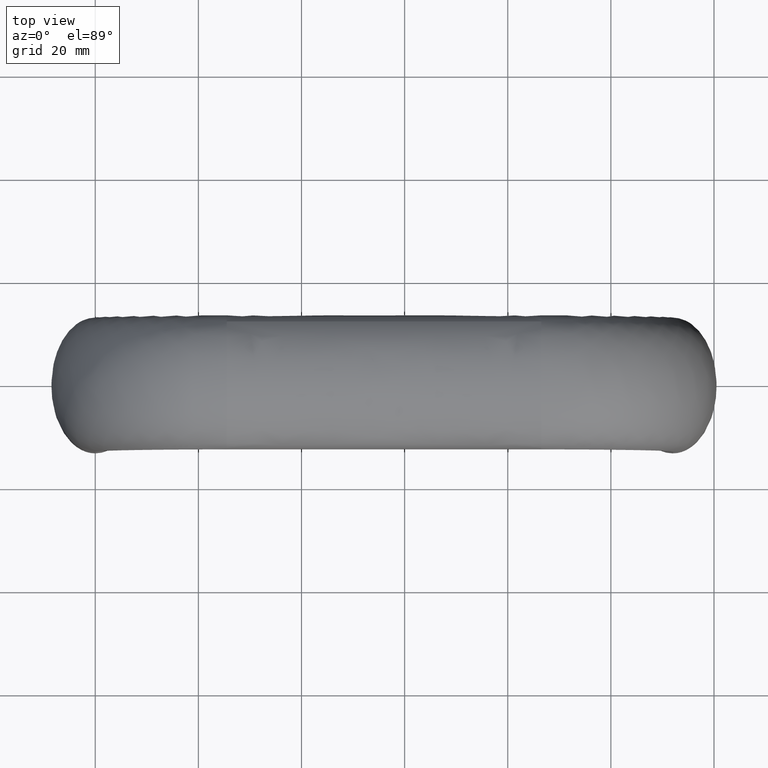
[diagram: clean part render]
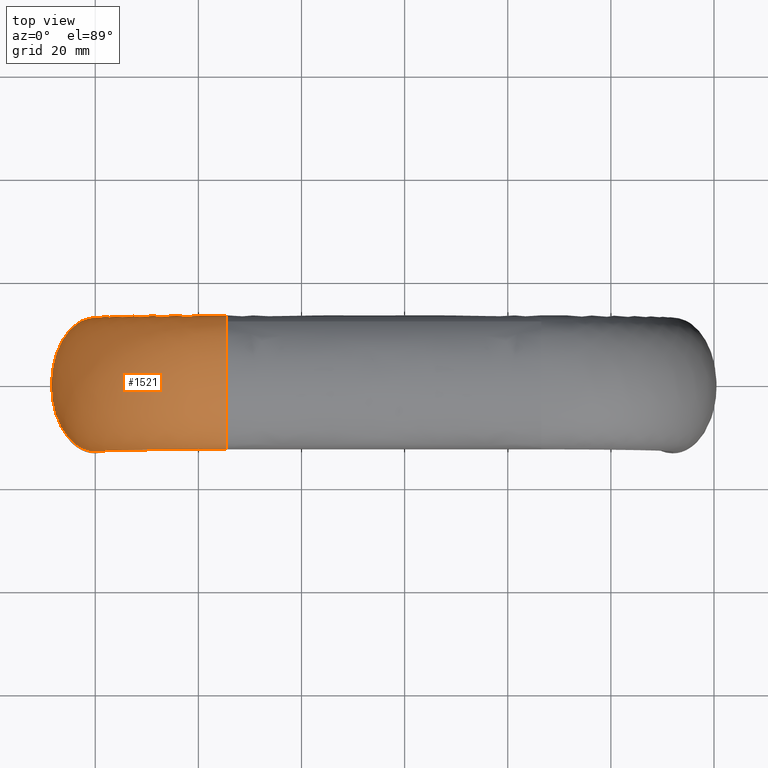
[diagram: same view with one face highlighted and labeled with its STEP entity id]
A machine part, top view. The second image highlights one B-rep face of the part: STEP entity #1521.
In plain terms, the highlighted face is a freeform B-spline surface patch.
Its self-contained STEP definition (entity closure, byte-faithful):
#1114=CARTESIAN_POINT('',(25.500000000000000,11.762630261970060,48.119082295161462));
#1115=VERTEX_POINT('',#1114);
#1123=CARTESIAN_POINT('',(25.500000000000000,-13.0,44.500008000000001));
#1124=VERTEX_POINT('',#1123);
#1125=CARTESIAN_POINT('',(25.500000000000000,11.762630261970060,48.119082295161462));
#1126=CARTESIAN_POINT('',(25.500000000000000,11.124518000535289,49.004813718325039));
#1127=CARTESIAN_POINT('',(25.500000000000000,10.251275255545981,49.818066382314342));
#1128=CARTESIAN_POINT('',(25.500000000000000,6.785826563922671,52.083936680683387));
#1129=CARTESIAN_POINT('',(25.500000000000000,3.403392041388941,53.000008000000001));
#1130=CARTESIAN_POINT('',(25.500000000000000,-3.403392041388945,53.000008000000001));
#1131=CARTESIAN_POINT('',(25.500000000000000,-6.785826563922671,52.083936680683387));
#1132=CARTESIAN_POINT('',(25.500000000000000,-10.395668951176340,49.723655119786798));
#1133=CARTESIAN_POINT('',(25.500000000000000,-11.359223048605340,48.780769333152712));
#1134=CARTESIAN_POINT('',(25.500000000000000,-12.661644796688099,46.724865017053901));
#1135=CARTESIAN_POINT('',(25.500000000000000,-13.0,45.612655398146401));
#1136=CARTESIAN_POINT('',(25.500000000000000,-13.0,44.500008000000001));
#1137=B_SPLINE_CURVE_WITH_KNOTS('',3,(#1125,#1126,#1127,#1128,#1129,#1130,#1131,#1132,#1133,#1134,#1135,#1136),.UNSPECIFIED.,.F.,.U.,(4,2,2,2,2,4),(0.570000000007283,0.625000000000000,0.750000000000000,0.875000000000000,0.937500000000000,1.0),.UNSPECIFIED.);
#1138=EDGE_CURVE('',#1115,#1124,#1137,.T.);
#1227=CARTESIAN_POINT('',(25.500000000000000,11.762637318019101,40.880943499016666));
#1228=VERTEX_POINT('',#1227);
#1244=CARTESIAN_POINT('',(25.500000000000000,13.0,44.500008000000001));
#1245=VERTEX_POINT('',#1244);
#1246=CARTESIAN_POINT('',(25.500000000000000,11.762637318019101,40.880943499016666));
#1247=CARTESIAN_POINT('',(25.500000000000000,11.849650038056430,41.001721864901022));
#1248=CARTESIAN_POINT('',(25.500000000000000,11.932290729989900,41.123847900134180));
#1249=CARTESIAN_POINT('',(25.500000000000000,12.661644796688099,42.275150982946151));
#1250=CARTESIAN_POINT('',(25.500000000000000,13.0,43.387360601853601));
#1251=CARTESIAN_POINT('',(25.500000000000000,13.0,44.500008000000001));
#1252=B_SPLINE_CURVE_WITH_KNOTS('',3,(#1246,#1247,#1248,#1249,#1250,#1251),.UNSPECIFIED.,.F.,.U.,(4,2,4),(0.430000202721214,0.437500000000000,0.500000000000000),.UNSPECIFIED.);
#1253=EDGE_CURVE('',#1228,#1245,#1252,.T.);
#1255=CARTESIAN_POINT('',(25.500000000000000,13.0,44.500008000000001));
#1256=CARTESIAN_POINT('',(25.500000000000000,13.0,45.612655398146401));
#1257=CARTESIAN_POINT('',(25.500000000000000,12.661644796688099,46.724865017053901));
#1258=CARTESIAN_POINT('',(25.500000000000000,11.932288617685890,47.876171434188997));
#1259=CARTESIAN_POINT('',(25.500000000000000,11.849645570299540,47.998300737523941));
#1260=CARTESIAN_POINT('',(25.500000000000000,11.762630261970060,48.119082295161462));
#1261=B_SPLINE_CURVE_WITH_KNOTS('',3,(#1255,#1256,#1257,#1258,#1259,#1260),.UNSPECIFIED.,.F.,.U.,(4,2,4),(0.500000000000000,0.562500000000000,0.570000000007282),.UNSPECIFIED.);
#1262=EDGE_CURVE('',#1245,#1115,#1261,.T.);
#1268=CARTESIAN_POINT('',(3.619074294985481,11.762630262096790,19.000008000000001));
#1269=CARTESIAN_POINT('',(3.498292737286736,11.849645570460011,19.000008000000001));
#1270=CARTESIAN_POINT('',(3.376163434069190,11.932288617761760,19.000008000000001));
#1271=CARTESIAN_POINT('',(2.224857017053885,12.661644796688099,19.000008000000001));
#1272=CARTESIAN_POINT('',(1.112647398146382,13.0,19.000008000000001));
#1273=CARTESIAN_POINT('',(-1.112647398146386,13.0,19.000008000000001));
#1274=CARTESIAN_POINT('',(-2.224857017053880,12.661644796688099,19.000008000000001));
#1275=CARTESIAN_POINT('',(-4.280761333152644,11.359223048605360,19.000008000000001));
#1276=CARTESIAN_POINT('',(-5.223647119786780,10.395668951176340,19.000008000000001));
#1277=CARTESIAN_POINT('',(-7.583928680683410,6.785826563922671,19.000008000000001));
#1278=CARTESIAN_POINT('',(-8.500000000000000,3.403392041388941,19.000008000000001));
#1279=CARTESIAN_POINT('',(-8.500000000000000,-3.403392041388945,19.000008000000001));
#1280=CARTESIAN_POINT('',(-7.583928680683410,-6.785826563922671,19.000008000000001));
#1281=CARTESIAN_POINT('',(-5.223647119786780,-10.395668951176340,19.000008000000001));
#1282=CARTESIAN_POINT('',(-4.280761333152644,-11.359223048605340,19.000008000000001));
#1283=CARTESIAN_POINT('',(-2.224857017053880,-12.661644796688099,19.000008000000001));
#1284=CARTESIAN_POINT('',(-1.112647398146384,-13.0,19.000008000000001));
#1285=CARTESIAN_POINT('',(9.757820E-016,-13.0,19.000008000000001));
#1286=CARTESIAN_POINT('',(3.619100251034044,11.762630262096790,21.864682765262110));
#1287=CARTESIAN_POINT('',(3.498318913622375,11.849645570460011,21.880495619047139));
#1288=CARTESIAN_POINT('',(3.376189833805555,11.932288617761760,21.896484921150542));
#1289=CARTESIAN_POINT('',(2.224885528919035,12.661644796688099,22.047215217889100));
#1290=CARTESIAN_POINT('',(1.112678002155452,13.0,22.192826918965348));
#1291=CARTESIAN_POINT('',(-1.112612510434716,13.0,22.484164950089099));
#1292=CARTESIAN_POINT('',(-2.224819943553890,12.661644796688099,22.629776651071399));
#1293=CARTESIAN_POINT('',(-4.280720148346635,11.359223048605360,22.898937894926799));
#1294=CARTESIAN_POINT('',(-5.223604020907680,10.395668951176340,23.022381534349499));
#1295=CARTESIAN_POINT('',(-7.583880718923040,6.785826563922671,23.331392180184501));
#1296=CARTESIAN_POINT('',(-8.499950125297030,3.403392041388941,23.451325240136850));
#1297=CARTESIAN_POINT('',(-8.499950125297030,-3.403392041388945,23.451325240136850));
#1298=CARTESIAN_POINT('',(-7.583880718923040,-6.785826563922671,23.331392180184501));
#1299=CARTESIAN_POINT('',(-5.223604020907669,-10.395668951176340,23.022381534349499));
#1300=CARTESIAN_POINT('',(-4.280720148346635,-11.359223048605340,22.898937894926799));
#1301=CARTESIAN_POINT('',(-2.224819943553890,-12.661644796688099,22.629776651071399));
#1302=CARTESIAN_POINT('',(-1.112612510434714,-13.0,22.484164950089099));
#1303=CARTESIAN_POINT('',(0.000032745860370,-13.0,22.338495934525049));
#1304=CARTESIAN_POINT('',(4.188576266433405,11.762630262096790,24.727294115713960));
#1305=CARTESIAN_POINT('',(4.070938329628517,11.849645570460011,24.758908433488660));
#1306=CARTESIAN_POINT('',(3.951987725515878,11.932288617761760,24.790875520808090));
#1307=CARTESIAN_POINT('',(2.830646735149355,12.661644796688099,25.092227545216851));
#1308=CARTESIAN_POINT('',(1.747384957807935,13.0,25.383346065242851));
#1309=CARTESIAN_POINT('',(-0.419991366907639,13.0,25.965812280891200));
#1310=CARTESIAN_POINT('',(-1.503253144249410,12.661644796688099,26.256930800922952));
#1311=CARTESIAN_POINT('',(-3.505647769903915,11.359223048605360,26.795059415932801));
#1312=CARTESIAN_POINT('',(-4.423992761437400,10.395668951176340,27.041857780285550));
#1313=CARTESIAN_POINT('',(-6.722842506321621,6.785826563922671,27.659656496626599));
#1314=CARTESIAN_POINT('',(-7.615070939403900,3.403392041388941,27.899436230763701));
#1315=CARTESIAN_POINT('',(-7.615070939403900,-3.403392041388945,27.899436230763701));
#1316=CARTESIAN_POINT('',(-6.722842506321621,-6.785826563922671,27.659656496626599));
#1317=CARTESIAN_POINT('',(-4.423992761437400,-10.395668951176340,27.041857780285550));
#1318=CARTESIAN_POINT('',(-3.505647769903915,-11.359223048605340,26.795059415932801));
#1319=CARTESIAN_POINT('',(-1.503253144249410,-12.661644796688099,26.256930800922952));
#1320=CARTESIAN_POINT('',(-0.419991366907999,-13.0,25.965812280891200));
#1321=CARTESIAN_POINT('',(0.663696795449971,-13.0,25.674579173069901));
#1322=CARTESIAN_POINT('',(6.380744911040576,11.762630262096790,30.019657388527040));
#1323=CARTESIAN_POINT('',(6.275207629720063,11.849645570460011,30.080485272885451));
#1324=CARTESIAN_POINT('',(6.168492706707592,11.932288617761760,30.141991907461328));
#1325=CARTESIAN_POINT('',(5.162496828415421,12.661644796688099,30.721811665787300));
#1326=CARTESIAN_POINT('',(4.190663200215204,13.0,31.281941534707300));
#1327=CARTESIAN_POINT('',(2.246230892733255,13.0,32.402642220397937));
#1328=CARTESIAN_POINT('',(1.274397264533404,12.661644796688099,32.962772089312153));
#1329=CARTESIAN_POINT('',(-0.522023946702613,11.359223048605360,33.998164514900047));
#1330=CARTESIAN_POINT('',(-1.345904714703294,10.395668951176340,34.473019688862152));
#1331=CARTESIAN_POINT('',(-3.408286619971450,6.785826563922671,35.661702270665003));
#1332=CARTESIAN_POINT('',(-4.208737271363590,3.403392041388941,36.123053170062448));
#1333=CARTESIAN_POINT('',(-4.208737271363590,-3.403392041388945,36.123053170062448));
#1334=CARTESIAN_POINT('',(-3.408286619971445,-6.785826563922671,35.661702270665003));
#1335=CARTESIAN_POINT('',(-1.345904714703290,-10.395668951176340,34.473019688862152));
#1336=CARTESIAN_POINT('',(-0.522023946702613,-11.359223048605340,33.998164514900047));
#1337=CARTESIAN_POINT('',(1.274397264533404,-12.661644796688099,32.962772089312153));
#1338=CARTESIAN_POINT('',(2.246230892733620,-13.0,32.402642220397937));
#1339=CARTESIAN_POINT('',(3.218447046474412,-13.0,31.842291877549719));
#1340=CARTESIAN_POINT('',(8.002549312776566,11.762630262096790,32.446859202086067));
#1341=CARTESIAN_POINT('',(7.905964306353630,11.849645570460011,32.521085112645324));
#1342=CARTESIAN_POINT('',(7.808301552532249,11.932288617761760,32.596139275797412));
#1343=CARTESIAN_POINT('',(6.887639989617600,12.661644796688099,33.303670862273002));
#1344=CARTESIAN_POINT('',(5.998242839650200,13.0,33.987175639563503));
#1345=CARTESIAN_POINT('',(4.218748384635415,13.0,35.354723265736951));
#1346=CARTESIAN_POINT('',(3.329351234668020,12.661644796688099,36.038228043027452));
#1347=CARTESIAN_POINT('',(1.685312729461845,11.359223048605360,37.301677304591003));
#1348=CARTESIAN_POINT('',(0.931318233172169,10.395668951176340,37.881124675531048));
#1349=CARTESIAN_POINT('',(-0.956120661165636,6.785826563922671,39.331627975641048));
#1350=CARTESIAN_POINT('',(-1.688672517143405,3.403392041388941,39.894596603525898));
#1351=CARTESIAN_POINT('',(-1.688672517143405,-3.403392041388945,39.894596603525898));
#1352=CARTESIAN_POINT('',(-0.956120661165635,-6.785826563922671,39.331627975629502));
#1353=CARTESIAN_POINT('',(0.931318233172172,-10.395668951176340,37.881124675531048));
#1354=CARTESIAN_POINT('',(1.685312729461845,-11.359223048605340,37.301677304591003));
#1355=CARTESIAN_POINT('',(3.329351234666570,-12.661644796688099,36.038228043027452));
#1356=CARTESIAN_POINT('',(4.218748384635415,-13.0,35.354723265736951));
#1357=CARTESIAN_POINT('',(5.108495612142813,-13.0,34.670949452650227));
#1358=CARTESIAN_POINT('',(12.053148797913870,11.762630262096790,36.497458687223592));
#1359=CARTESIAN_POINT('',(11.978922887354690,11.849645570460011,36.594043693646462));
#1360=CARTESIAN_POINT('',(11.903868724202640,11.932288617761760,36.691706447467787));
#1361=CARTESIAN_POINT('',(11.196337137727060,12.661644796688099,37.612368010382447));
#1362=CARTESIAN_POINT('',(10.512832360433659,13.0,38.501765160352747));
#1363=CARTESIAN_POINT('',(9.145284734252961,13.0,40.281259615374800));
#1364=CARTESIAN_POINT('',(8.461779956959569,12.661644796688099,41.170656765345051));
#1365=CARTESIAN_POINT('',(7.198330695397490,11.359223048605360,42.814695270549812));
#1366=CARTESIAN_POINT('',(6.618883324460350,10.395668951176340,43.568689766836599));
#1367=CARTESIAN_POINT('',(5.168380024359010,6.785826563922671,45.456128661165700));
#1368=CARTESIAN_POINT('',(4.605411396458241,3.403392041388941,46.188680517159412));
#1369=CARTESIAN_POINT('',(4.605411396458241,-3.403392041388945,46.188680517159412));
#1370=CARTESIAN_POINT('',(5.168380024359010,-6.785826563922671,45.456128661177303));
#1371=CARTESIAN_POINT('',(6.618883324460350,-10.395668951176340,43.568689766836599));
#1372=CARTESIAN_POINT('',(7.198330695397490,-11.359223048605340,42.814695270549812));
#1373=CARTESIAN_POINT('',(8.461779956961010,-12.661644796688099,41.170656765345051));
#1374=CARTESIAN_POINT('',(9.145284734252961,-13.0,40.281259615374800));
#1375=CARTESIAN_POINT('',(9.829058547343312,-13.0,39.391512387863770));
#1376=CARTESIAN_POINT('',(14.480350611490310,11.762630262096790,38.119263088965567));
#1377=CARTESIAN_POINT('',(14.419522727131900,11.849645570460011,38.224800370286303));
#1378=CARTESIAN_POINT('',(14.358016092556030,11.932288617761760,38.331515293299120));
#1379=CARTESIAN_POINT('',(13.778196334230040,12.661644796688099,39.337511171596162));
#1380=CARTESIAN_POINT('',(13.218066465315840,13.0,40.309344799812287));
#1381=CARTESIAN_POINT('',(12.097365779622320,13.0,42.253777107285202));
#1382=CARTESIAN_POINT('',(11.537235910705199,12.661644796688099,43.225610735478199));
#1383=CARTESIAN_POINT('',(10.501843485123100,11.359223048605360,45.022031946722912));
#1384=CARTESIAN_POINT('',(10.026988311155201,10.395668951176340,45.845912714727902));
#1385=CARTESIAN_POINT('',(8.838305729358138,6.785826563922671,47.908294619994599));
#1386=CARTESIAN_POINT('',(8.376954829954910,3.403392041388941,48.708745271386803));
#1387=CARTESIAN_POINT('',(8.376954829954910,-3.403392041388945,48.708745271386803));
#1388=CARTESIAN_POINT('',(8.838305729355250,-6.785826563922671,47.908294619994599));
#1389=CARTESIAN_POINT('',(10.026988311158100,-10.395668951176340,45.845912714716299));
#1390=CARTESIAN_POINT('',(10.501843485123100,-11.359223048605340,45.022031946722912));
#1391=CARTESIAN_POINT('',(11.537235910705199,-12.661644796688099,43.225610735478199));
#1392=CARTESIAN_POINT('',(12.097365779619420,-13.0,42.253777107285202));
#1393=CARTESIAN_POINT('',(12.657716122467630,-13.0,41.281560953542950));
#1394=CARTESIAN_POINT('',(19.772713884268651,11.762630262096790,40.311431733560447));
#1395=CARTESIAN_POINT('',(19.741099566493940,11.849645570460011,40.429069670365116));
#1396=CARTESIAN_POINT('',(19.709132479174510,11.932288617761760,40.548020274477402));
#1397=CARTESIAN_POINT('',(19.407780454765749,12.661644796688099,41.669361264839047));
#1398=CARTESIAN_POINT('',(19.116661934734001,13.0,42.752623042164537));
#1399=CARTESIAN_POINT('',(18.534195719088551,13.0,44.919999366889201));
#1400=CARTESIAN_POINT('',(18.243077199059648,12.661644796688099,46.003261144237797));
#1401=CARTESIAN_POINT('',(17.704948584044001,11.359223048605360,48.005655769883603));
#1402=CARTESIAN_POINT('',(17.458150219697050,10.395668951176340,48.924000761412799));
#1403=CARTESIAN_POINT('',(16.840351503350199,6.785826563922671,51.222850506298514));
#1404=CARTESIAN_POINT('',(16.600571769218899,3.403392041388941,52.115078939380702));
#1405=CARTESIAN_POINT('',(16.600571769218899,-3.403392041388945,52.115078939380702));
#1406=CARTESIAN_POINT('',(16.840351503353101,-6.785826563922671,51.222850506298514));
#1407=CARTESIAN_POINT('',(17.458150219694200,-10.395668951176340,48.924000761424402));
#1408=CARTESIAN_POINT('',(17.704948584044001,-11.359223048605340,48.005655769883603));
#1409=CARTESIAN_POINT('',(18.243077199059648,-12.661644796688099,46.003261144237797));
#1410=CARTESIAN_POINT('',(18.534195719091450,-13.0,44.919999366889201));
#1411=CARTESIAN_POINT('',(18.825428826912720,-13.0,43.836311204532670));
#1412=CARTESIAN_POINT('',(22.635325234750969,11.762630262096790,40.880907748963693));
#1413=CARTESIAN_POINT('',(22.619512380965940,11.849645570460011,41.001689086375322));
#1414=CARTESIAN_POINT('',(22.603523078862541,11.932288617761760,41.123818166192223));
#1415=CARTESIAN_POINT('',(22.452792782123950,12.661644796688099,42.275122471080941));
#1416=CARTESIAN_POINT('',(22.307181081052050,13.0,43.387329997853051));
#1417=CARTESIAN_POINT('',(22.015843049926151,13.0,45.612620510437701));
#1418=CARTESIAN_POINT('',(21.870231348941701,12.661644796688099,46.724827943553898));
#1419=CARTESIAN_POINT('',(21.601070105090599,11.359223048605360,48.780728148338802));
#1420=CARTESIAN_POINT('',(21.477626465663601,10.395668951176340,49.723612020913997));
#1421=CARTESIAN_POINT('',(21.168615819832951,6.785826563922671,52.083888718918097));
#1422=CARTESIAN_POINT('',(21.048682759876250,3.403392041388941,52.999958125300402));
#1423=CARTESIAN_POINT('',(21.048682759876250,-3.403392041388945,52.999958125300402));
#1424=CARTESIAN_POINT('',(21.168615819830801,-6.785826563922671,52.083888718918097));
#1425=CARTESIAN_POINT('',(21.477626465665750,-10.395668951176340,49.723612020901399));
#1426=CARTESIAN_POINT('',(21.601070105090599,-11.359223048605340,48.780728148338802));
#1427=CARTESIAN_POINT('',(21.870231348941701,-12.661644796688099,46.724827943553898));
#1428=CARTESIAN_POINT('',(22.015843049923951,-13.0,45.612620510437701));
#1429=CARTESIAN_POINT('',(22.161512065488001,-13.0,44.499975254139699));
#1430=CARTESIAN_POINT('',(25.500000000000000,11.762630262096790,40.880933705014527));
#1431=CARTESIAN_POINT('',(25.500000000000000,11.849645570460011,41.001715262713283));
#1432=CARTESIAN_POINT('',(25.500000000000000,11.932288617761760,41.123844565930817));
#1433=CARTESIAN_POINT('',(25.500000000000000,12.661644796688099,42.275150982946151));
#1434=CARTESIAN_POINT('',(25.500000000000000,13.0,43.387360601853601));
#1435=CARTESIAN_POINT('',(25.500000000000000,13.0,45.612655398146401));
#1436=CARTESIAN_POINT('',(25.500000000000000,12.661644796688099,46.724865017053901));
#1437=CARTESIAN_POINT('',(25.500000000000000,11.359223048605360,48.780769333152712));
#1438=CARTESIAN_POINT('',(25.500000000000000,10.395668951176340,49.723655119786798));
#1439=CARTESIAN_POINT('',(25.500000000000000,6.785826563922671,52.083936680683387));
#1440=CARTESIAN_POINT('',(25.500000000000000,3.403392041388941,53.000008000000001));
#1441=CARTESIAN_POINT('',(25.500000000000000,-3.403392041388945,53.000008000000001));
#1442=CARTESIAN_POINT('',(25.500000000000000,-6.785826563922671,52.083936680683387));
#1443=CARTESIAN_POINT('',(25.500000000000000,-10.395668951176340,49.723655119786798));
#1444=CARTESIAN_POINT('',(25.500000000000000,-11.359223048605340,48.780769333152712));
#1445=CARTESIAN_POINT('',(25.500000000000000,-12.661644796688099,46.724865017053901));
#1446=CARTESIAN_POINT('',(25.500000000000000,-13.0,45.612655398146401));
#1447=CARTESIAN_POINT('',(25.500000000000000,-13.0,44.500008000000001));
#1448=B_SPLINE_SURFACE_WITH_KNOTS('',3,3,((#1268,#1286,#1304,#1322,#1340,#1358,#1376,#1394,#1412,#1430),(#1269,#1287,#1305,#1323,#1341,#1359,#1377,#1395,#1413,#1431),(#1270,#1288,#1306,#1324,#1342,#1360,#1378,#1396,#1414,#1432),(#1271,#1289,#1307,#1325,#1343,#1361,#1379,#1397,#1415,#1433),(#1272,#1290,#1308,#1326,#1344,#1362,#1380,#1398,#1416,#1434),(#1273,#1291,#1309,#1327,#1345,#1363,#1381,#1399,#1417,#1435),(#1274,#1292,#1310,#1328,#1346,#1364,#1382,#1400,#1418,#1436),(#1275,#1293,#1311,#1329,#1347,#1365,#1383,#1401,#1419,#1437),(#1276,#1294,#1312,#1330,#1348,#1366,#1384,#1402,#1420,#1438),(#1277,#1295,#1313,#1331,#1349,#1367,#1385,#1403,#1421,#1439),(#1278,#1296,#1314,#1332,#1350,#1368,#1386,#1404,#1422,#1440),(#1279,#1297,#1315,#1333,#1351,#1369,#1387,#1405,#1423,#1441),(#1280,#1298,#1316,#1334,#1352,#1370,#1388,#1406,#1424,#1442),(#1281,#1299,#1317,#1335,#1353,#1371,#1389,#1407,#1425,#1443),(#1282,#1300,#1318,#1336,#1354,#1372,#1390,#1408,#1426,#1444),(#1283,#1301,#1319,#1337,#1355,#1373,#1391,#1409,#1427,#1445),(#1284,#1302,#1320,#1338,#1356,#1374,#1392,#1410,#1428,#1446),(#1285,#1303,#1321,#1339,#1357,#1375,#1393,#1411,#1429,#1447)),.UNSPECIFIED.,.F.,.F.,.U.,(4,2,2,2,2,2,2,2,4),(4,2,2,2,4),(0.0,0.600209731613888,5.601957495062954,10.603705258512020,15.605453021961090,25.608948548859221,35.612444075757352,40.614191839206420,45.615939602655487),(0.0,13.237780774914301,26.475561549828520,39.713342324742847,52.951123099657167),.UNSPECIFIED.);
#1449=ORIENTED_EDGE('',*,*,#1253,.F.);
#1450=CARTESIAN_POINT('',(3.619064500983346,11.762637318019101,19.000008000000001));
#1451=VERTEX_POINT('',#1450);
#1452=CARTESIAN_POINT('',(3.619064500983346,11.762637318019101,19.000008000000001));
#1453=CARTESIAN_POINT('',(3.619091098158463,11.762637318019101,21.864683406388661));
#1454=CARTESIAN_POINT('',(4.188567881666804,11.762637318019101,24.727295524949490));
#1455=CARTESIAN_POINT('',(6.380738201329285,11.762637318019101,30.019660472817890));
#1456=CARTESIAN_POINT('',(8.002543509242095,11.762637318019101,32.446863192553742));
#1457=CARTESIAN_POINT('',(12.053144807446200,11.762637318019101,36.497464490758063));
#1458=CARTESIAN_POINT('',(14.480347527199470,11.762637318019101,38.119269798676847));
#1459=CARTESIAN_POINT('',(19.772712475033110,11.762637318019101,40.311440118327063));
#1460=CARTESIAN_POINT('',(22.635324593624421,11.762637318019101,40.880916901839278));
#1461=CARTESIAN_POINT('',(25.500000000000000,11.762637318019101,40.880943499016666));
#1462=B_SPLINE_CURVE_WITH_KNOTS('',3,(#1452,#1453,#1454,#1455,#1456,#1457,#1458,#1459,#1460,#1461),.UNSPECIFIED.,.F.,.U.,(4,2,2,2,4),(0.106079734862488,0.161988346528191,0.217896958193893,0.273805569859596,0.329714181525299),.UNSPECIFIED.);
#1463=EDGE_CURVE('',#1451,#1228,#1462,.T.);
#1464=ORIENTED_EDGE('',*,*,#1463,.F.);
#1465=CARTESIAN_POINT('',(-1.951564E-015,13.0,19.000008000000001));
#1466=VERTEX_POINT('',#1465);
#1467=CARTESIAN_POINT('',(3.619064500983346,11.762637318019101,19.000008000000001));
#1468=CARTESIAN_POINT('',(3.498286135098995,11.849650038056430,19.000008000000001));
#1469=CARTESIAN_POINT('',(3.376160099865832,11.932290729989900,19.000008000000001));
#1470=CARTESIAN_POINT('',(2.224857017053885,12.661644796688099,19.000008000000001));
#1471=CARTESIAN_POINT('',(1.112647398146382,13.0,19.000008000000001));
#1472=CARTESIAN_POINT('',(-1.951564E-015,13.0,19.000008000000001));
#1473=B_SPLINE_CURVE_WITH_KNOTS('',3,(#1467,#1468,#1469,#1470,#1471,#1472),.UNSPECIFIED.,.F.,.U.,(4,2,4),(0.430000202721214,0.437500000000000,0.500000000000000),.UNSPECIFIED.);
#1474=EDGE_CURVE('',#1451,#1466,#1473,.T.);
#1475=ORIENTED_EDGE('',*,*,#1474,.T.);
#1476=CARTESIAN_POINT('',(-3.619074295161406,11.762630261970060,19.000008000000001));
#1477=VERTEX_POINT('',#1476);
#1478=CARTESIAN_POINT('',(-1.951564E-015,13.0,19.000008000000001));
#1479=CARTESIAN_POINT('',(-1.112647398146386,13.0,19.000008000000001));
#1480=CARTESIAN_POINT('',(-2.224857017053880,12.661644796688099,19.000008000000001));
#1481=CARTESIAN_POINT('',(-3.376163434188957,11.932288617685890,19.000008000000001));
#1482=CARTESIAN_POINT('',(-3.498292737523893,11.849645570299540,19.000008000000001));
#1483=CARTESIAN_POINT('',(-3.619074295161406,11.762630261970060,19.000008000000001));
#1484=B_SPLINE_CURVE_WITH_KNOTS('',3,(#1478,#1479,#1480,#1481,#1482,#1483),.UNSPECIFIED.,.F.,.U.,(4,2,4),(0.500000000000000,0.562500000000000,0.570000000007282),.UNSPECIFIED.);
#1485=EDGE_CURVE('',#1466,#1477,#1484,.T.);
#1486=ORIENTED_EDGE('',*,*,#1485,.T.);
#1487=CARTESIAN_POINT('',(8.991289E-016,-13.0,19.000008000000001));
#1488=VERTEX_POINT('',#1487);
#1489=CARTESIAN_POINT('',(-3.619074295161406,11.762630261970060,19.000008000000001));
#1490=CARTESIAN_POINT('',(-4.504805718324985,11.124518000535289,19.000008000000001));
#1491=CARTESIAN_POINT('',(-5.318058382314323,10.251275255545981,19.000008000000001));
#1492=CARTESIAN_POINT('',(-7.583928680683410,6.785826563922671,19.000008000000001));
#1493=CARTESIAN_POINT('',(-8.500000000000000,3.403392041388941,19.000008000000001));
#1494=CARTESIAN_POINT('',(-8.500000000000000,-3.403392041388945,19.000008000000001));
#1495=CARTESIAN_POINT('',(-7.583928680683410,-6.785826563922671,19.000008000000001));
#1496=CARTESIAN_POINT('',(-5.223647119786780,-10.395668951176340,19.000008000000001));
#1497=CARTESIAN_POINT('',(-4.280761333152644,-11.359223048605340,19.000008000000001));
#1498=CARTESIAN_POINT('',(-2.224857017053880,-12.661644796688099,19.000008000000001));
#1499=CARTESIAN_POINT('',(-1.112647398146384,-13.0,19.000008000000001));
#1500=CARTESIAN_POINT('',(9.757820E-016,-13.0,19.000008000000001));
#1501=B_SPLINE_CURVE_WITH_KNOTS('',3,(#1489,#1490,#1491,#1492,#1493,#1494,#1495,#1496,#1497,#1498,#1499,#1500),.UNSPECIFIED.,.F.,.U.,(4,2,2,2,2,4),(0.570000000007283,0.625000000000000,0.750000000000000,0.875000000000000,0.937500000000000,1.0),.UNSPECIFIED.);
#1502=EDGE_CURVE('',#1477,#1488,#1501,.T.);
#1503=ORIENTED_EDGE('',*,*,#1502,.T.);
#1504=CARTESIAN_POINT('',(8.881784E-016,-13.0,19.000008000000001));
#1505=CARTESIAN_POINT('',(0.000032745860370,-13.0,22.338495934525049));
#1506=CARTESIAN_POINT('',(0.663696795449971,-13.0,25.674579173069901));
#1507=CARTESIAN_POINT('',(3.218447046474412,-13.0,31.842291877549719));
#1508=CARTESIAN_POINT('',(5.108495612142813,-13.0,34.670949452650227));
#1509=CARTESIAN_POINT('',(9.829058547343312,-13.0,39.391512387863770));
#1510=CARTESIAN_POINT('',(12.657716122467630,-13.0,41.281560953542950));
#1511=CARTESIAN_POINT('',(18.825428826912720,-13.0,43.836311204532670));
#1512=CARTESIAN_POINT('',(22.161512065488001,-13.0,44.499975254139699));
#1513=CARTESIAN_POINT('',(25.500000000000000,-13.0,44.500008000000001));
#1514=B_SPLINE_CURVE_WITH_KNOTS('',3,(#1504,#1505,#1506,#1507,#1508,#1509,#1510,#1511,#1512,#1513),.UNSPECIFIED.,.F.,.U.,(4,2,2,2,4),(0.106079734862488,0.161988346528191,0.217896958193893,0.273805569859596,0.329714181525299),.UNSPECIFIED.);
#1515=EDGE_CURVE('',#1488,#1124,#1514,.T.);
#1516=ORIENTED_EDGE('',*,*,#1515,.T.);
#1517=ORIENTED_EDGE('',*,*,#1138,.F.);
#1518=ORIENTED_EDGE('',*,*,#1262,.F.);
#1519=EDGE_LOOP('',(#1449,#1464,#1475,#1486,#1503,#1516,#1517,#1518));
#1520=FACE_OUTER_BOUND('',#1519,.T.);
#1521=ADVANCED_FACE('',(#1520),#1448,.T.);